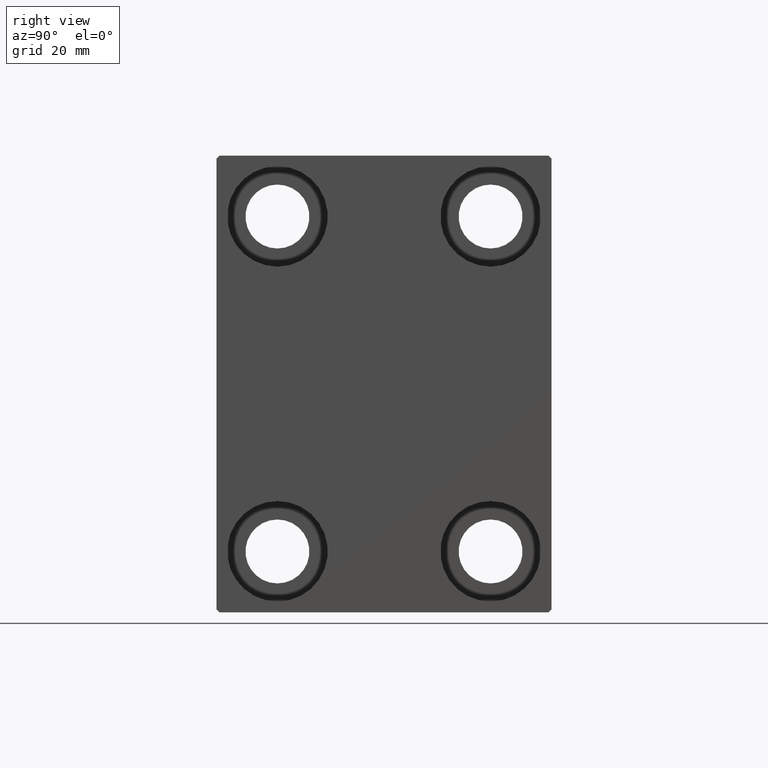
[diagram: clean part render]
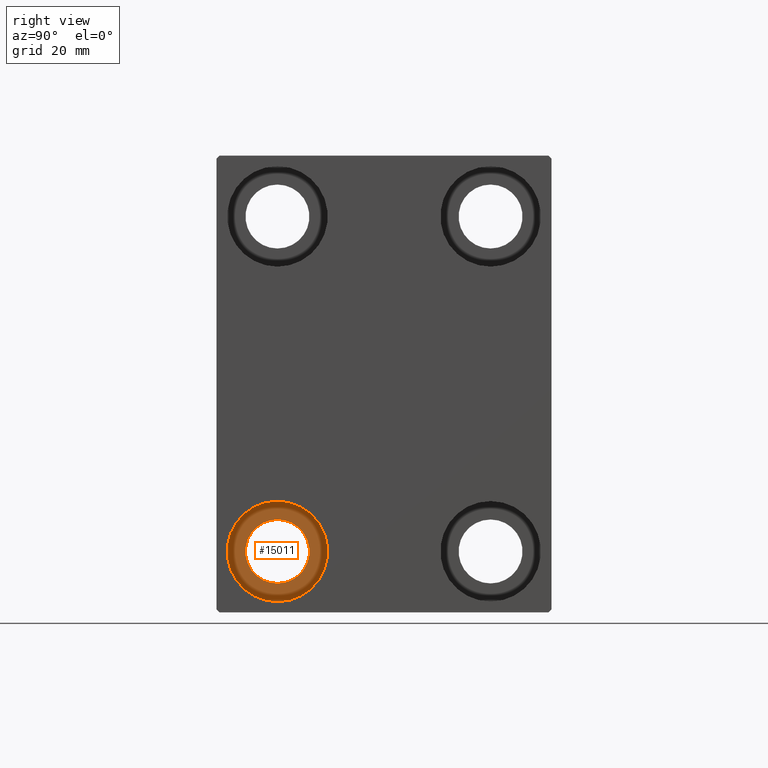
[diagram: same view with one face highlighted and labeled with its STEP entity id]
A machine part, right view. The second image highlights one B-rep face of the part: STEP entity #15011.
In plain terms, the highlighted planar face has unit normal (1, 0, 0).
Its self-contained STEP definition (entity closure, byte-faithful):
#883 = EDGE_CURVE ( 'NONE', #31315, #2117, #4770, .T. ) ;
#1890 = AXIS2_PLACEMENT_3D ( 'NONE', #20017, #2873, #16461 ) ;
#2117 = VERTEX_POINT ( 'NONE', #31729 ) ;
#2873 = DIRECTION ( 'NONE',  ( -1.000000000000000000, -0.000000000000000000, -0.000000000000000000 ) ) ;
#4053 = EDGE_CURVE ( 'NONE', #2117, #31315, #37519, .T. ) ;
#4770 = CIRCLE ( 'NONE', #1890, 5.249999999999997335 ) ;
#6757 = DIRECTION ( 'NONE',  ( 0.000000000000000000, 0.000000000000000000, -1.000000000000000000 ) ) ;
#7632 = DIRECTION ( 'NONE',  ( -1.000000000000000000, -0.000000000000000000, -0.000000000000000000 ) ) ;
#7773 = VERTEX_POINT ( 'NONE', #12318 ) ;
#10240 = CARTESIAN_POINT ( 'NONE',  ( 54.00000000000000711, 0.000000000000000000, 0.000000000000000000 ) ) ;
#12318 = CARTESIAN_POINT ( 'NONE',  ( 54.00000000000000711, -17.50000000000000355, -35.75000000000000711 ) ) ;
#12454 = ORIENTED_EDGE ( 'NONE', *, *, #30850, .F. ) ;
#12587 = DIRECTION ( 'NONE',  ( -1.000000000000000000, -0.000000000000000000, -0.000000000000000000 ) ) ;
#13167 = CARTESIAN_POINT ( 'NONE',  ( 54.00000000000000711, -17.50000000000000355, -19.25000000000000355 ) ) ;
#15011 = ADVANCED_FACE ( 'NONE', ( #27152, #40722 ), #29824, .T. ) ;
#15458 = ORIENTED_EDGE ( 'NONE', *, *, #883, .T. ) ;
#16383 = DIRECTION ( 'NONE',  ( 0.000000000000000000, 0.000000000000000000, 1.000000000000000000 ) ) ;
#16461 = DIRECTION ( 'NONE',  ( 0.000000000000000000, 0.000000000000000000, -1.000000000000000000 ) ) ;
#19516 = AXIS2_PLACEMENT_3D ( 'NONE', #20663, #27545, #31317 ) ;
#20017 = CARTESIAN_POINT ( 'NONE',  ( 54.00000000000000711, -17.50000000000000355, -27.50000000000000355 ) ) ;
#20663 = CARTESIAN_POINT ( 'NONE',  ( 54.00000000000000711, -17.50000000000000355, -27.50000000000000355 ) ) ;
#21113 = CIRCLE ( 'NONE', #43821, 8.250000000000000000 ) ;
#24244 = EDGE_CURVE ( 'NONE', #43307, #7773, #35839, .T. ) ;
#27152 = FACE_OUTER_BOUND ( 'NONE', #39334, .T. ) ;
#27545 = DIRECTION ( 'NONE',  ( -1.000000000000000000, -0.000000000000000000, -0.000000000000000000 ) ) ;
#28101 = CARTESIAN_POINT ( 'NONE',  ( 54.00000000000000711, -17.50000000000000355, -27.50000000000000355 ) ) ;
#29369 = EDGE_LOOP ( 'NONE', ( #15458, #37340 ) ) ;
#29824 = PLANE ( 'NONE',  #42644 ) ;
#30386 = CARTESIAN_POINT ( 'NONE',  ( 54.00000000000000711, -17.50000000000000355, -27.50000000000000355 ) ) ;
#30850 = EDGE_CURVE ( 'NONE', #7773, #43307, #21113, .T. ) ;
#31315 = VERTEX_POINT ( 'NONE', #43455 ) ;
#31317 = DIRECTION ( 'NONE',  ( 0.000000000000000000, 0.000000000000000000, 1.000000000000000000 ) ) ;
#31729 = CARTESIAN_POINT ( 'NONE',  ( 54.00000000000000711, -17.50000000000000355, -32.75000000000000000 ) ) ;
#32940 = DIRECTION ( 'NONE',  ( 1.000000000000000000, 0.000000000000000000, -0.000000000000000000 ) ) ;
#35839 = CIRCLE ( 'NONE', #19516, 8.250000000000000000 ) ;
#36757 = ORIENTED_EDGE ( 'NONE', *, *, #24244, .F. ) ;
#37340 = ORIENTED_EDGE ( 'NONE', *, *, #4053, .T. ) ;
#37519 = CIRCLE ( 'NONE', #41067, 5.249999999999997335 ) ;
#39334 = EDGE_LOOP ( 'NONE', ( #12454, #36757 ) ) ;
#40055 = DIRECTION ( 'NONE',  ( 0.000000000000000000, 0.000000000000000000, 1.000000000000000000 ) ) ;
#40722 = FACE_BOUND ( 'NONE', #29369, .T. ) ;
#41067 = AXIS2_PLACEMENT_3D ( 'NONE', #28101, #7632, #6757 ) ;
#42644 = AXIS2_PLACEMENT_3D ( 'NONE', #10240, #32940, #40055 ) ;
#43307 = VERTEX_POINT ( 'NONE', #13167 ) ;
#43455 = CARTESIAN_POINT ( 'NONE',  ( 54.00000000000000711, -17.50000000000000355, -22.25000000000000355 ) ) ;
#43821 = AXIS2_PLACEMENT_3D ( 'NONE', #30386, #12587, #16383 ) ;